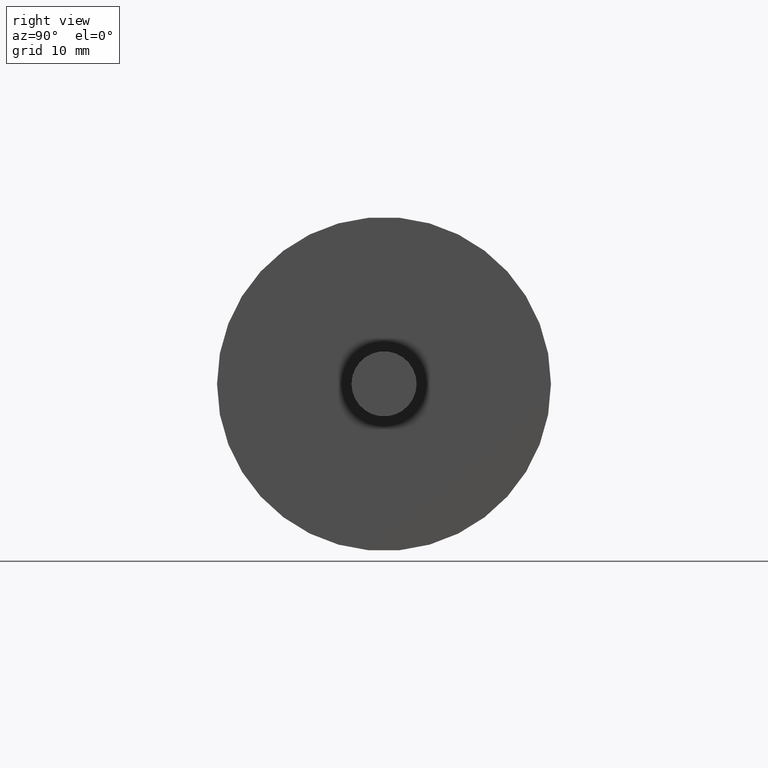
[diagram: clean part render]
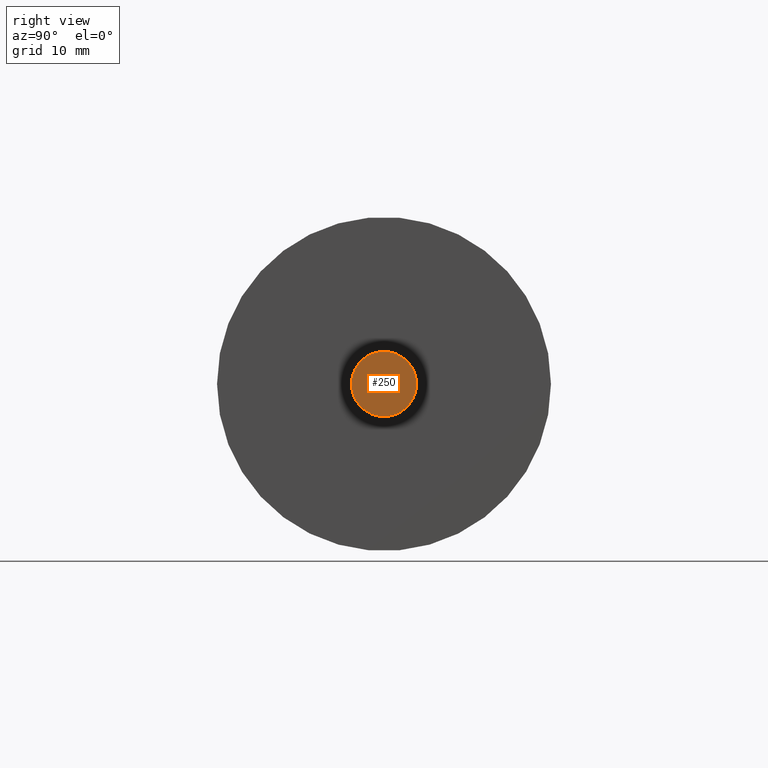
[diagram: same view with one face highlighted and labeled with its STEP entity id]
A machine part, right view. The second image highlights one B-rep face of the part: STEP entity #250.
In plain terms, the highlighted planar face has unit normal (-1, 0, 0).
Its self-contained STEP definition (entity closure, byte-faithful):
#22=PLANE('',#291);
#69=FACE_OUTER_BOUND('',#106,.T.);
#106=EDGE_LOOP('',(#216));
#138=CIRCLE('',#292,3.9);
#160=VERTEX_POINT('',#446);
#182=EDGE_CURVE('',#160,#160,#138,.T.);
#216=ORIENTED_EDGE('',*,*,#182,.T.);
#250=ADVANCED_FACE('',(#69),#22,.F.);
#291=AXIS2_PLACEMENT_3D('',#445,#368,#369);
#292=AXIS2_PLACEMENT_3D('',#447,#370,#371);
#368=DIRECTION('center_axis',(-1.,0.,0.));
#369=DIRECTION('ref_axis',(0.,0.,1.));
#370=DIRECTION('center_axis',(1.,0.,0.));
#371=DIRECTION('ref_axis',(0.,0.,-1.));
#445=CARTESIAN_POINT('Origin',(33.5,3.9,0.));
#446=CARTESIAN_POINT('',(33.5,3.9,0.));
#447=CARTESIAN_POINT('Origin',(33.5,0.,0.));